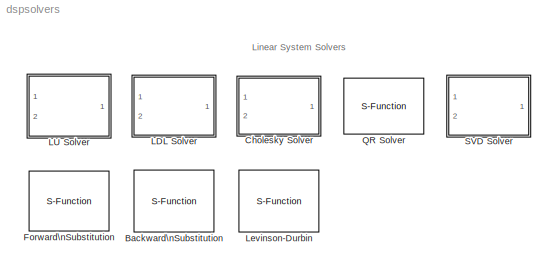
MODEL dspsolvers
KIND library
BLOCK [S-Function] Backward\nSubstitution
  FunctionName = sdspfbsub
  MaskDescription = Solve UX=B where U is an upper (or unit-upper) triangular matrix.  U must be square.  B must have the same number of rows as U.
  MaskDisplay = plot(x,y); text(.4,0.9,'U X = B');\nport_label('input',1,'U');\nport_label('input',2,'B');\nport_label('output',1,'X');
  MaskEnableString = on
  MaskHelp = web(dspbhelp);
  MaskIconFrame = on
  MaskIconOpaque = on
  MaskIconRotate = none
  MaskIconUnits = normalized
  MaskInitialization = x=[ 0.45 0.45 0.18 0.45 NaN 0.495 0.585 0.585 0.495 0.495 NaN 0.63 0.675 NaN 0.63 0.675 NaN 0.72 0.81 0.81 0.72 0.72 ];\ny=[ 0.1 0.7 0.7 0.1 NaN 0.1 0.1 0.7 0.7 0.1 NaN 0.35 0.35 NaN 0.45 0.45 NaN 0.1 0.1 0.7 0.7 0.1 ];\n
  MaskPromptString = Force input to be unit-upper triangular
  MaskStyleString = checkbox
  MaskToolTipString = on
  MaskTunableValueString = on
  MaskType = Backward Substitution
  MaskValueString = off
  MaskVariables = unit=@1;
  MaskVisibilityString = on
  Parameters = unit,1
  Ports = [2, 1]
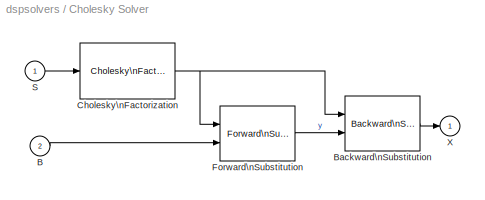
BLOCK [SubSystem] Cholesky Solver
  MaskDescription = Solve SX=B using Cholesky factorization.  S must be a square, symmetric (Hermitian) positive definite matrix.  B must have the same number of rows as S.
  MaskDisplay = plot(x,y+0.05);\ntext(0.17,0.9,'SX=B (Chol)');\ntext(0.12,0.15,'[m x m]');\n
  MaskEnableString = on
  MaskHelp = web(dspbhelp);
  MaskIconFrame = on
  MaskIconOpaque = off
  MaskIconRotate = none
  MaskIconUnits = normalized
  MaskInitialization = x=[ 0.135 0.475 .475 0.135 0.135 NaN .135 .475 NaN 0.55 0.64 0.64 0.55  0.55 NaN 0.685 0.73 NaN 0.685 0.73 NaN 0.775 0.865 0.865 0.775 0.775 ];\ny=[ 0.2 0.2 0.7 0.7 .2 NaN .7 .2 NaN 0.2 0.2 0.7 0.7 0.2 NaN 0.4 0.4 NaN 0.45 0.45 NaN 0.2 0.2 0.7 0.7 0.2 ];\nset_param([gcb '/Cholesky Factorization'],'MaskTunableValues', {'off'});\nset_param([gcb '/Cholesky Factorization'],'errmode',get_param(gcb,'err...<+10ch>
  MaskPromptString = Non-positive definite input:
  MaskSelfModifiable = on
  MaskStyleString = popup(Ignore|Warning|Error)
  MaskToolTipString = on
  MaskTunableValueString = off
  MaskType = Cholesky Solver
  MaskValueString = Warning
  MaskVariables = errmode=&1;
  MaskVisibilityString = on
  Ports = [2, 1]
  TreatAsAtomicUnit = off
BLOCK [Inport] Cholesky Solver/B
  IconDisplay = Port number
  Port = 2
BLOCK [Reference] Cholesky Solver/Backward\nSubstitution  REF=dspsolvers/Backward\nSubstitution
  Ports = [2, 1]
  SourceBlock = dspsolvers/Backward\nSubstitution
  SourceType = Backward Substitution
  unit = off
BLOCK [Reference] Cholesky Solver/Cholesky\nFactorization  REF=dspfactors/Cholesky\nFactorization
  Ports = [1, 1]
  SourceBlock = dspfactors/Cholesky\nFactorization
  SourceType = Cholesky Factorization
  errmode = Warning
BLOCK [Reference] Cholesky Solver/Forward\nSubstitution  REF=dspsolvers/Forward\nSubstitution
  Ports = [2, 1]
  SourceBlock = dspsolvers/Forward\nSubstitution
  SourceType = Forward Substitution
  unit = off
BLOCK [Inport] Cholesky Solver/S
  IconDisplay = Port number
BLOCK [Outport] Cholesky Solver/X
  BusOutputAsStruct = off
  IconDisplay = Port number
  InitialOutput = 0
BLOCK [S-Function] Forward\nSubstitution
  FunctionName = sdspfbsub
  MaskDescription = Solve LX=B where L is a lower (or unit-lower) triangular matrix.  L must be square.  B must have the same number of rows as L.
  MaskDisplay = plot(x,y); text(.4,0.9,'L X = B');\nport_label('input',1,'L');\nport_label('input',2,'B');\nport_label('output',1,'X');
  MaskEnableString = on
  MaskHelp = web(dspbhelp);
  MaskIconFrame = on
  MaskIconOpaque = on
  MaskIconRotate = none
  MaskIconUnits = normalized
  MaskInitialization = x=[ 0.18 0.45 0.18 0.18 NaN 0.495 0.585 0.585 0.495 0.495 NaN 0.63 0.675 NaN 0.63 0.675 NaN 0.72 0.81 0.81 0.72 0.72 ];\ny=[ 0.1 0.1 0.7 0.1 NaN 0.1 0.1 0.7 0.7 0.1 NaN 0.35 0.35 NaN 0.45 0.45 NaN 0.1 0.1 0.7 0.7 0.1 ];\n
  MaskPromptString = Force input to be unit-lower triangular
  MaskStyleString = checkbox
  MaskToolTipString = on
  MaskTunableValueString = on
  MaskType = Forward Substitution
  MaskValueString = off
  MaskVariables = unit=@1;
  MaskVisibilityString = on
  Parameters = unit,0
  Ports = [2, 1]
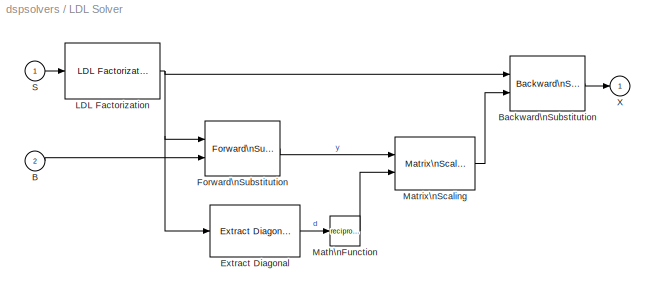
BLOCK [SubSystem] LDL Solver
  MaskDescription = Solve SX=B using LDL' factorization.  Only for use with a symmetric (Hermitian) positive definite input matrix S.  S must be square.  B must have the same number of rows as S.
  MaskDisplay = plot(x,y+0.05);\ntext(0.17,0.9,'SX=B (LDL'')');\ntext(0.12,0.15,'[m x m]');
  MaskEnableString = on
  MaskHelp = web(dspbhelp);
  MaskIconFrame = on
  MaskIconOpaque = off
  MaskIconRotate = none
  MaskIconUnits = normalized
  MaskInitialization = Bcols=1;\nx=[ 0.135 0.475 .475 0.135 0.135 NaN .135 .475 NaN 0.55 0.64 0.64 0.55 0.55 NaN 0.685 0.73 NaN 0.685 0.73 NaN 0.775 0.865 0.865 0.775 0.775 ];\ny=[ 0.2 0.2 0.7 0.7 0.2 NaN .7 .2 NaN 0.2 0.2 0.7 0.7 0.2 NaN 0.4 0.4 NaN 0.45 0.45 NaN 0.2 0.2 0.7 0.7 0.2 ];\nset_param([gcb '/LDL Factorization'],'MaskTunableValues', {'off'});\nset_param([gcb '/LDL Factorization'],'errmode',get_param(gcb,'err...<+10ch>
  MaskPromptString = Non-positive definite input:
  MaskSelfModifiable = on
  MaskStyleString = popup(Ignore|Warning|Error)
  MaskToolTipString = on
  MaskTunableValueString = off
  MaskType = LDL Solver
  MaskValueString = Warning
  MaskVariables = errmode=&1;
  MaskVisibilityString = on
  Ports = [2, 1]
  TreatAsAtomicUnit = off
BLOCK [Inport] LDL Solver/B
  IconDisplay = Port number
  Port = 2
BLOCK [Reference] LDL Solver/Backward\nSubstitution  REF=dspsolvers/Backward\nSubstitution
  Ports = [2, 1]
  SourceBlock = dspsolvers/Backward\nSubstitution
  SourceType = Backward Substitution
  unit = on
BLOCK [Reference] LDL Solver/Extract Diagonal  REF=dspmtrx3/Extract Diagonal
  Ports = [1, 1]
  SourceBlock = dspmtrx3/Extract Diagonal
  SourceType = Extract Diagonal
BLOCK [Reference] LDL Solver/Forward\nSubstitution  REF=dspsolvers/Forward\nSubstitution
  Ports = [2, 1]
  SourceBlock = dspsolvers/Forward\nSubstitution
  SourceType = Forward Substitution
  unit = on
BLOCK [Reference] LDL Solver/LDL Factorization  REF=dspfactors/LDL Factorization
  Ports = [1, 1]
  SourceBlock = dspfactors/LDL Factorization
  SourceType = LDL Factorization
  errmode = Warning
BLOCK [Math] LDL Solver/Math\nFunction
  Operator = reciprocal
  Ports = [1, 1]
BLOCK [Reference] LDL Solver/Matrix\nScaling  REF=dspmtrx3/Matrix\nScaling
  D_Source = Input port
  D_VectFromMask = [0.5 0.25]
  Ports = [2, 1]
  SourceBlock = dspmtrx3/Matrix\nScaling
  SourceType = Matrix Scaling
  accumFracLength = 30
  accumMode = Inherit via internal rule
  accumWordLength = 32
  additionalParams = off
  allowOverrides = on
  firstCoeffFracLength = 15
  firstCoeffMode = Same word length as input
  firstCoeffWordLength = 16
  mode = Scale rows (D*A)
  outputFracLength = 15
  outputMode = Same as product output
  outputWordLength = 16
  overflowMode = off
  prodOutputFracLength = 30
  prodOutputMode = Inherit via internal rule
  prodOutputWordLength = 32
  roundingMode = Floor
BLOCK [Inport] LDL Solver/S
  IconDisplay = Port number
BLOCK [Outport] LDL Solver/X
  BusOutputAsStruct = off
  IconDisplay = Port number
  InitialOutput = 0
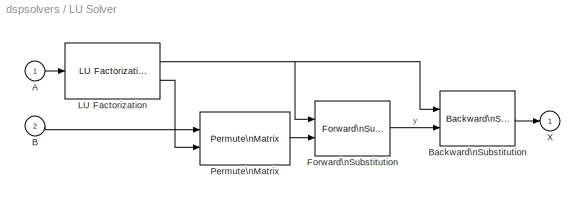
BLOCK [SubSystem] LU Solver
  MaskDescription = Solve AX=B using LU decomposition.  A must be square.  B must have the same number of rows as A.
  MaskDisplay = plot(x,y+0.05);\n\ntext(0.25,0.9,'AX=B (LU)');\n\ntext(0.12,0.15,'[m x m]');\n
  MaskHelp = web(dspbhelp);
  MaskIconFrame = on
  MaskIconOpaque = off
  MaskIconRotate = none
  MaskIconUnits = normalized
  MaskInitialization = x=[ 0.135 .475 0.475 0.135 .135 NaN 0.55 0.64 0.64 0.55 0.55 NaN 0.685 0.73 NaN 0.685 0.73 NaN 0.775 0.865 0.865 0.775 0.775 ];\ny=[ 0.2 0.2 0.7 0.7 0.2 NaN 0.2 0.2 0.7 0.7 0.2 NaN 0.4 0.4 NaN 0.45 0.45 NaN 0.2 0.2 0.7 0.7 0.2 ];\n\n
  MaskType = LU Solver
  Ports = [2, 1]
  TreatAsAtomicUnit = off
BLOCK [Inport] LU Solver/A
  IconDisplay = Port number
BLOCK [Inport] LU Solver/B
  IconDisplay = Port number
  Port = 2
BLOCK [Reference] LU Solver/Backward\nSubstitution  REF=dspsolvers/Backward\nSubstitution
  Ports = [2, 1]
  SourceBlock = dspsolvers/Backward\nSubstitution
  SourceType = Backward Substitution
  unit = off
BLOCK [Reference] LU Solver/Forward\nSubstitution  REF=dspsolvers/Forward\nSubstitution
  Ports = [2, 1]
  SourceBlock = dspsolvers/Forward\nSubstitution
  SourceType = Forward Substitution
  unit = on
BLOCK [Reference] LU Solver/LU Factorization  REF=dspfactors/LU Factorization
  Ports = [1, 2]
  SourceBlock = dspfactors/LU Factorization
  SourceType = LU Factorization
  singular = off
BLOCK [Reference] LU Solver/Permute\nMatrix  REF=dspmtrx3/Permute\nMatrix
  Ports = [2, 1]
  SourceBlock = dspmtrx3/Permute\nMatrix
  SourceType = Permute Matrix
  ZeroOneIdxMode = One-based
  checkDims = on
  errmode = Clip Index
  mode = Rows
BLOCK [Outport] LU Solver/X
  BusOutputAsStruct = off
  IconDisplay = Port number
  InitialOutput = 0
BLOCK [S-Function] Levinson-Durbin
  CopyFcn = dspfixptcopycallback
  DialogController = dspDDGCreate
  DialogControllerArgs = DataTag0
  FunctionName = sdsplevdurb2
  MaskCallbackString = |||||||||||||||||||||
  MaskDescription = Solve Hermitian Toeplitz system of equations using the Levinson-Durbin recursion.  Input is typically a vector of autocorrelation coefficients with lag 0 as the first element.  Outputs polynomial coefficients A, reflection coefficients K, and/or the prediction error power P.
  MaskDisplay = text(0.2,0.6,'Levinson-');\ntext(0.3,0.4,'Durbin');\nport_label('output',s.o1,s.o1s);\nport_label('output',s.o2,s.o2s);\nport_label('output',s.o3,s.o3s);\n
  MaskEnableString = on,on,on,off,off,on,on,on,on,on,on,on,on,on,on,on,on,on,on,on,on,on
  MaskHelp = web(dspbhelp);
  MaskIconFrame = on
  MaskIconOpaque = on
  MaskIconRotate = none
  MaskIconUnits = normalized
  MaskInitialization = s = dspblklevdurb2('setup', coeffOutFcn, outP);\n\ndtInfo = dspblklevdurb2('init');\n
  MaskPromptString = Output(s):|Output prediction error power (P)|If the value of lag 0 is zero, A=[1 zeros], K=[zeros], P=0|--------------- Show additional parameters ---------------|Allow overrides from DSP Attributes blocksAllow overrides from DSP Attributes blocks|Fixed-point A attributes:|A word length:|A fraction length:|Fixed-point K attributes:|K word length:|K fraction length:|Fixed-point P attributes:|P word...<+283ch>
  MaskSelfModifiable = on
  MaskStyleString = popup(A and K|A|K),checkbox,checkbox,checkbox,checkbox,popup(Binary point scaling|Slope and bias scaling|User-defined),edit,edit,popup(Binary point scaling|Slope and bias scaling|User-defined),edit,edit,popup(Same as input|Binary point scaling|Slope and bias scaling|User-defined),edit,edit,popup(Same as product output|Same as input|Binary point scaling|Slope and bias scaling|User-defined),edit,edi...<+119ch>
  MaskTabNameString = ,,,,,,,,,,,,,,,,,,,,,
  MaskToolTipString = on,on,on,on,on,on,on,on,on,on,on,on,on,on,on,on,on,on,on,on,on,on
  MaskTunableValueString = off,off,off,off,off,off,off,off,off,off,off,off,off,off,off,off,off,off,off,off,off,off
  MaskType = Levinson-Durbin
  MaskValueString = K|off|on|off|off|Binary point scaling|16|15|Binary point scaling|16|15|Same as input|16|15|Same as input|32|30|Same as input|32|30|Floor|off
  MaskVarAliasString = ,,,,,,,,,,,,,,,,,,,,,
  MaskVariables = coeffOutFcn=@1;outP=@2;zeroInpHandling=@3;additionalParams=@4;allowOverrides=@5;firstCoeffMode=@6;firstCoeffWordLength=@7;firstCoeffFracLength=@8;secondCoeffMode=@9;secondCoeffWordLength=@10;secondCoeffFracLength=@11;outputMode=@12;outputWordLength=@13;outputFracLength=@14;accumMode=@15;accumWordLength=@16;accumFracLength=@17;prodOutputMode=@18;prodOutputWordLength=@19;prodOutputFracLength=@20;rou...<+31ch>
  MaskVisibilityString = on,on,on,off,off,on,on,on,on,on,on,on,on,on,on,on,on,on,on,on,on,on
  Parameters = coeffOutFcn,outP,zeroInpHandling,dtInfo.firstCoeffMode,dtInfo.firstCoeffWordLength,dtInfo.firstCoeffFracLength,dtInfo.secondCoeffMode,dtInfo.secondCoeffWordLength,dtInfo.secondCoeffFracLength,dtInfo.prodOutputMode,dtInfo.prodOutputWordLength,dtInfo.prodOutputFracLength,dtInfo.accumMode,dtInfo.accumWordLength,dtInfo.accumFracLength,dtInfo.outputMode,dtInfo.outputWordLength,dtInfo.outputFracLength,d...<+38ch>
  Ports = [1, 1]
BLOCK [S-Function] QR Solver
  FunctionName = sdspqreslv2
  MaskDescription = Solve AX=B using QR factorization.  B must have the same number of rows as A.   If A is not square, the output is a least squares solution.
  MaskDisplay = plot(x,y+0.05);\ntext(0.23,0.9,'AX=B (QR)');\ntext(0.17,0.15,'[m x n]');\nport_label('input',1,'A');\nport_label('input',2,'B');\nport_label('output',1,'X');
  MaskHelp = web(dspbhelp);
  MaskIconFrame = on
  MaskIconOpaque = on
  MaskIconRotate = none
  MaskIconUnits = normalized
  MaskInitialization = x=[ 0.2 0.475 .475 0.2 0.2 NaN 0.55 0.64 0.64 0.55 0.55 NaN 0.685 0.73 NaN 0.685 0.73 NaN 0.775 0.865 0.865 0.775 0.775 ];\ny=[ 0.2 0.2 0.7 0.7 0.2 NaN 0.35 0.35 0.7 0.7 0.35 NaN 0.4 0.4 NaN 0.45 0.45 NaN 0.2 0.2 0.7 0.7 0.2 ];\n\n
  MaskType = QR Solver
  Ports = [2, 1]
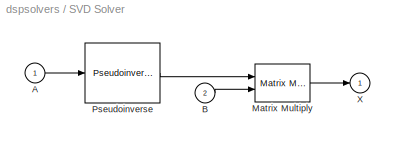
BLOCK [SubSystem] SVD Solver
  MaskDescription = Solve AX=B using Singular Value Decomposition.  B must have the same number of rows as A.  If A is not square, the output is a least squares solution.
  MaskDisplay = plot(x,y+0.05);\n\ntext(0.2,0.9,'AX=B (SVD)');\n\ntext(0.17,0.15,'[m x n]');
  MaskHelp = web(dspbhelp);
  MaskIconFrame = on
  MaskIconOpaque = off
  MaskIconRotate = none
  MaskIconUnits = normalized
  MaskInitialization = x=[ 0.2 0.475 .475 0.2 0.2 NaN 0.55 0.64 0.64 0.55 0.55 NaN 0.685 0.73 NaN 0.685 0.73 NaN 0.775 0.865 0.865 0.775 0.775 ];\ny=[ 0.2 0.2 0.7 0.7 0.2 NaN 0.35 0.35 0.7 0.7 0.35 NaN 0.4 0.4 NaN 0.45 0.45 NaN 0.2 0.2 0.7 0.7 0.2 ];\n\n
  MaskType = SVD Solver
  Ports = [2, 1]
  TreatAsAtomicUnit = off
BLOCK [Inport] SVD Solver/A
  IconDisplay = Port number
BLOCK [Inport] SVD Solver/B
  IconDisplay = Port number
  Port = 2
BLOCK [Reference] SVD Solver/Matrix Multiply  REF=dspmtrx3/Matrix Multiply
  OptimizationLevel = None
  Ports = [2, 1]
  SourceBlock = dspmtrx3/Matrix Multiply
  SourceType = Matrix Multiply
  numInputPorts = 2
BLOCK [Reference] SVD Solver/Pseudoinverse  REF=dspinverses/Pseudoinverse
  Ports = [1, 1]
  SourceBlock = dspinverses/Pseudoinverse
  SourceType = Pseudoinverse
BLOCK [Outport] SVD Solver/X
  BusOutputAsStruct = off
  IconDisplay = Port number
  InitialOutput = 0
ANNOTATION (root): Linear System Solvers
LINE Cholesky Solver/B:1 -> Cholesky Solver/Forward\nSubstitution:2
LINE Cholesky Solver/Backward\nSubstitution:1 -> Cholesky Solver/X:1
NET Cholesky Solver/Cholesky\nFactorization:1 -> Cholesky Solver/Backward\nSubstitution:1, Cholesky Solver/Forward\nSubstitution:1
LINE Cholesky Solver/Forward\nSubstitution:1 -> Cholesky Solver/Backward\nSubstitution:2
LINE Cholesky Solver/S:1 -> Cholesky Solver/Cholesky\nFactorization:1
LINE LDL Solver/B:1 -> LDL Solver/Forward\nSubstitution:2
LINE LDL Solver/Backward\nSubstitution:1 -> LDL Solver/X:1
LINE LDL Solver/Extract Diagonal:1 -> LDL Solver/Math\nFunction:1
LINE LDL Solver/Forward\nSubstitution:1 -> LDL Solver/Matrix\nScaling:1
NET LDL Solver/LDL Factorization:1 -> LDL Solver/Backward\nSubstitution:1, LDL Solver/Extract Diagonal:1, LDL Solver/Forward\nSubstitution:1
LINE LDL Solver/Math\nFunction:1 -> LDL Solver/Matrix\nScaling:2
LINE LDL Solver/Matrix\nScaling:1 -> LDL Solver/Backward\nSubstitution:2
LINE LDL Solver/S:1 -> LDL Solver/LDL Factorization:1
LINE LU Solver/A:1 -> LU Solver/LU Factorization:1
LINE LU Solver/B:1 -> LU Solver/Permute\nMatrix:1
LINE LU Solver/Backward\nSubstitution:1 -> LU Solver/X:1
LINE LU Solver/Forward\nSubstitution:1 -> LU Solver/Backward\nSubstitution:2
NET LU Solver/LU Factorization:1 -> LU Solver/Backward\nSubstitution:1, LU Solver/Forward\nSubstitution:1
LINE LU Solver/LU Factorization:2 -> LU Solver/Permute\nMatrix:2
LINE LU Solver/Permute\nMatrix:1 -> LU Solver/Forward\nSubstitution:2
LINE SVD Solver/A:1 -> SVD Solver/Pseudoinverse:1
LINE SVD Solver/B:1 -> SVD Solver/Matrix Multiply:2
LINE SVD Solver/Matrix Multiply:1 -> SVD Solver/X:1
LINE SVD Solver/Pseudoinverse:1 -> SVD Solver/Matrix Multiply:1
note: NET lines group one-source signal fan-out (src -> all destinations, sorted); 1:1 wires keep LINE
